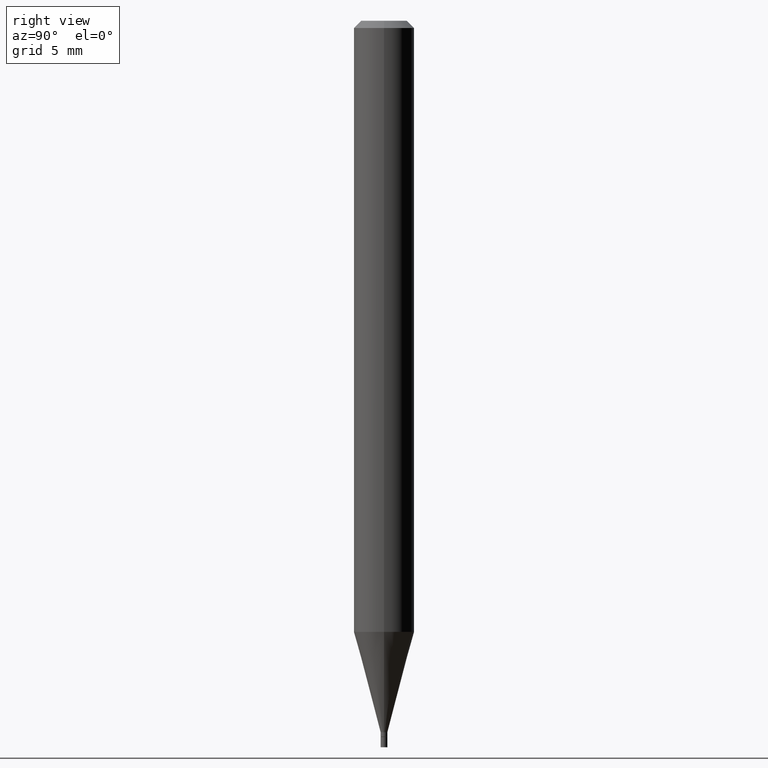
[diagram: clean part render]
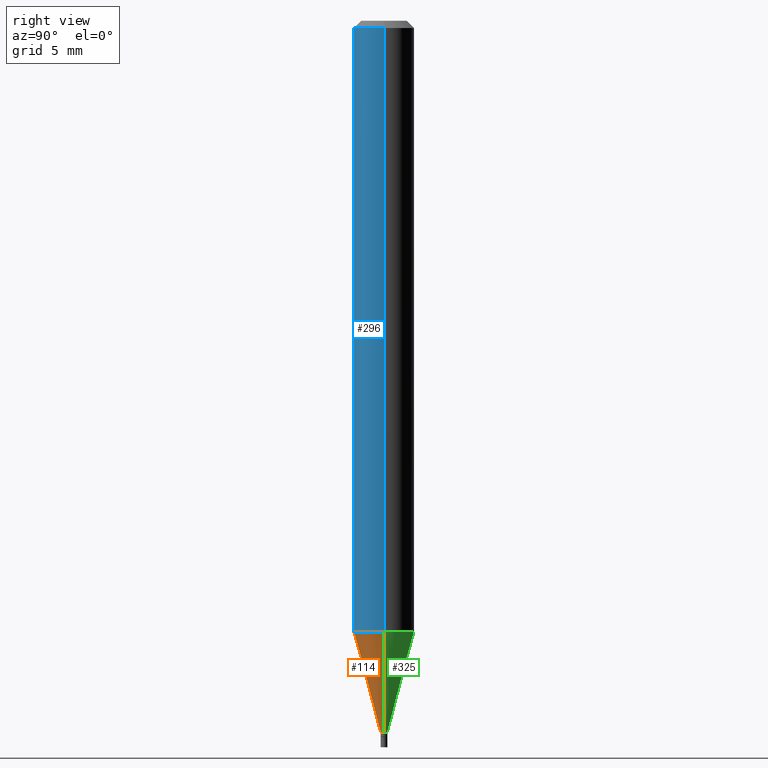
[diagram: same view with three faces highlighted in distinct colors, each labeled with its STEP entity id]
A machine part, right view with three faces highlighted in distinct colors.
Their STEP definitions:

[orange] entity #114 — the highlighted conical surface has half-angle 15 deg.
#7 = AXIS2_PLACEMENT_3D ( 'NONE', #172, #319, #315 ) ;
#16 = CARTESIAN_POINT ( 'NONE',  ( 0.06249999999999999306, -4.842234844977585811E-15, -1.261871180179927610 ) ) ;
#19 = VERTEX_POINT ( 'NONE', #79 ) ;
#21 = CONICAL_SURFACE ( 'NONE', #407, 0.006999999999999920348, 0.2617993877991500740 ) ;
#29 = CARTESIAN_POINT ( 'NONE',  ( -0.006999999999999920348, -4.520479281514752345E-15, -1.469000000000000083 ) ) ;
#37 = DIRECTION ( 'NONE',  ( -2.445468806185136597E-29, 3.491481338843145583E-15, 1.000000000000000000 ) ) ;
#43 = DIRECTION ( 'NONE',  ( -0.2588190451025213501, 5.211531920934551042E-15, 0.9659258262890682012 ) ) ;
#45 = ORIENTED_EDGE ( 'NONE', *, *, #418, .T. ) ;
#58 = VECTOR ( 'NONE', #43, 39.37007874015747433 ) ;
#62 = EDGE_CURVE ( 'NONE', #19, #199, #281, .T. ) ;
#73 = DIRECTION ( 'NONE',  ( 1.000000000000000000, -6.982962677686273021E-15, 0.000000000000000000 ) ) ;
#79 = CARTESIAN_POINT ( 'NONE',  ( -0.06249999999999999306, -3.961710467772130736E-15, -1.261871180179927610 ) ) ;
#88 = CARTESIAN_POINT ( 'NONE',  ( 0.006999999999999920348, -5.177866825504383900E-15, -1.469000000000000083 ) ) ;
#93 = VERTEX_POINT ( 'NONE', #29 ) ;
#114 = ADVANCED_FACE ( 'NONE', ( #448 ), #21, .T. ) ;
#115 = ORIENTED_EDGE ( 'NONE', *, *, #62, .F. ) ;
#127 = CARTESIAN_POINT ( 'NONE',  ( 0.006999999999999920348, -5.177866825504383900E-15, -1.469000000000000083 ) ) ;
#155 = LINE ( 'NONE', #127, #458 ) ;
#172 = CARTESIAN_POINT ( 'NONE',  ( 3.592393676285966338E-29, -5.128986086760581011E-15, -1.469000000000000083 ) ) ;
#175 = ORIENTED_EDGE ( 'NONE', *, *, #185, .F. ) ;
#177 = DIRECTION ( 'NONE',  ( 1.000000000000000000, -6.982962677686262766E-15, 0.000000000000000000 ) ) ;
#185 = EDGE_CURVE ( 'NONE', #93, #19, #276, .T. ) ;
#188 = CARTESIAN_POINT ( 'NONE',  ( 3.592393676285966338E-29, -5.128986086760581011E-15, -1.469000000000000083 ) ) ;
#195 = AXIS2_PLACEMENT_3D ( 'NONE', #351, #279, #177 ) ;
#199 = VERTEX_POINT ( 'NONE', #16 ) ;
#245 = EDGE_CURVE ( 'NONE', #93, #370, #422, .T. ) ;
#247 = ORIENTED_EDGE ( 'NONE', *, *, #245, .T. ) ;
#250 = CARTESIAN_POINT ( 'NONE',  ( -0.006999999999999920348, -5.079248095257373954E-15, -1.469000000000000083 ) ) ;
#276 = LINE ( 'NONE', #250, #58 ) ;
#279 = DIRECTION ( 'NONE',  ( -2.445468806185136597E-29, 3.491481338843145583E-15, 1.000000000000000000 ) ) ;
#281 = CIRCLE ( 'NONE', #195, 0.06250000000000000000 ) ;
#314 = EDGE_LOOP ( 'NONE', ( #175, #247, #45, #115 ) ) ;
#315 = DIRECTION ( 'NONE',  ( 1.000000000000000000, -6.982962677686273021E-15, 0.000000000000000000 ) ) ;
#319 = DIRECTION ( 'NONE',  ( -2.445468806185136597E-29, 3.491481338843145583E-15, 1.000000000000000000 ) ) ;
#351 = CARTESIAN_POINT ( 'NONE',  ( 3.085866608554036727E-29, -4.405799677622194141E-15, -1.261871180179927610 ) ) ;
#370 = VERTEX_POINT ( 'NONE', #88 ) ;
#407 = AXIS2_PLACEMENT_3D ( 'NONE', #188, #37, #73 ) ;
#412 = DIRECTION ( 'NONE',  ( 0.2588190451025213501, 1.565188264969621968E-15, 0.9659258262890682012 ) ) ;
#418 = EDGE_CURVE ( 'NONE', #370, #199, #155, .T. ) ;
#422 = CIRCLE ( 'NONE', #7, 0.006999999999999920348 ) ;
#448 = FACE_OUTER_BOUND ( 'NONE', #314, .T. ) ;
#458 = VECTOR ( 'NONE', #412, 39.37007874015747433 ) ;

[blue] entity #296 — the highlighted cylindrical surface (edge-blend (fillet) strip) has radius 1.5875 mm, axis along (-0, 0, 1).
#13 = ORIENTED_EDGE ( 'NONE', *, *, #135, .F. ) ;
#16 = CARTESIAN_POINT ( 'NONE',  ( 0.06249999999999999306, -4.842234844977585811E-15, -1.261871180179927610 ) ) ;
#18 = ORIENTED_EDGE ( 'NONE', *, *, #369, .T. ) ;
#19 = VERTEX_POINT ( 'NONE', #79 ) ;
#40 = DIRECTION ( 'NONE',  ( -2.445468806185136877E-29, 3.491481338843145188E-15, 1.000000000000000000 ) ) ;
#62 = EDGE_CURVE ( 'NONE', #19, #199, #281, .T. ) ;
#72 = FACE_OUTER_BOUND ( 'NONE', #318, .T. ) ;
#75 = AXIS2_PLACEMENT_3D ( 'NONE', #445, #415, #201 ) ;
#79 = CARTESIAN_POINT ( 'NONE',  ( -0.06249999999999999306, -3.961710467772130736E-15, -1.261871180179927610 ) ) ;
#83 = DIRECTION ( 'NONE',  ( -2.445468806185136877E-29, 3.491481338843145188E-15, 1.000000000000000000 ) ) ;
#111 = DIRECTION ( 'NONE',  ( 1.000000000000000000, -6.982962677686266711E-15, 0.000000000000000000 ) ) ;
#135 = EDGE_CURVE ( 'NONE', #19, #210, #150, .T. ) ;
#145 = EDGE_CURVE ( 'NONE', #210, #426, #389, .T. ) ;
#150 = LINE ( 'NONE', #232, #206 ) ;
#168 = VECTOR ( 'NONE', #83, 39.37007874015748143 ) ;
#174 = CARTESIAN_POINT ( 'NONE',  ( -0.06250000000000000000, -1.784996739002358191E-15, -0.01499999999999999944 ) ) ;
#177 = DIRECTION ( 'NONE',  ( 1.000000000000000000, -6.982962677686262766E-15, 0.000000000000000000 ) ) ;
#195 = AXIS2_PLACEMENT_3D ( 'NONE', #351, #279, #177 ) ;
#199 = VERTEX_POINT ( 'NONE', #16 ) ;
#201 = DIRECTION ( 'NONE',  ( 1.000000000000000000, -6.982962677686266711E-15, 4.876176775795935793E-29 ) ) ;
#206 = VECTOR ( 'NONE', #40, 39.37007874015748143 ) ;
#210 = VERTEX_POINT ( 'NONE', #174 ) ;
#229 = CYLINDRICAL_SURFACE ( 'NONE', #75, 0.06250000000000000000 ) ;
#232 = CARTESIAN_POINT ( 'NONE',  ( -0.06250000000000000000, 4.440892098500626162E-16, -3.074334431409316114E-30 ) ) ;
#237 = ORIENTED_EDGE ( 'NONE', *, *, #62, .T. ) ;
#279 = DIRECTION ( 'NONE',  ( -2.445468806185136597E-29, 3.491481338843145583E-15, 1.000000000000000000 ) ) ;
#281 = CIRCLE ( 'NONE', #195, 0.06250000000000000000 ) ;
#296 = ADVANCED_FACE ( 'NONE', ( #72 ), #229, .T. ) ;
#298 = CARTESIAN_POINT ( 'NONE',  ( 3.668203209277705088E-31, -5.237222008264718399E-17, -0.01499999999999999944 ) ) ;
#299 = CARTESIAN_POINT ( 'NONE',  ( 0.06250000000000000000, -4.364351673553916694E-16, 3.047610484872459871E-30 ) ) ;
#306 = ORIENTED_EDGE ( 'NONE', *, *, #145, .F. ) ;
#318 = EDGE_LOOP ( 'NONE', ( #13, #237, #18, #306 ) ) ;
#333 = LINE ( 'NONE', #299, #168 ) ;
#351 = CARTESIAN_POINT ( 'NONE',  ( 3.085866608554036727E-29, -4.405799677622194141E-15, -1.261871180179927610 ) ) ;
#369 = EDGE_CURVE ( 'NONE', #199, #426, #333, .T. ) ;
#376 = CARTESIAN_POINT ( 'NONE',  ( 0.06250000000000000000, -4.888073874380388472E-16, -0.01499999999999999944 ) ) ;
#389 = CIRCLE ( 'NONE', #463, 0.06250000000000000000 ) ;
#415 = DIRECTION ( 'NONE',  ( -2.445468806185136597E-29, 3.491481338843145583E-15, 1.000000000000000000 ) ) ;
#426 = VERTEX_POINT ( 'NONE', #376 ) ;
#444 = DIRECTION ( 'NONE',  ( -2.445468806185136597E-29, 3.491481338843145583E-15, 1.000000000000000000 ) ) ;
#445 = CARTESIAN_POINT ( 'NONE',  ( 0.000000000000000000, 0.000000000000000000, 0.000000000000000000 ) ) ;
#463 = AXIS2_PLACEMENT_3D ( 'NONE', #298, #444, #111 ) ;

[green] entity #325 — the highlighted conical surface has half-angle 15 deg.
#3 = AXIS2_PLACEMENT_3D ( 'NONE', #134, #100, #136 ) ;
#16 = CARTESIAN_POINT ( 'NONE',  ( 0.06249999999999999306, -4.842234844977585811E-15, -1.261871180179927610 ) ) ;
#19 = VERTEX_POINT ( 'NONE', #79 ) ;
#20 = ORIENTED_EDGE ( 'NONE', *, *, #248, .T. ) ;
#29 = CARTESIAN_POINT ( 'NONE',  ( -0.006999999999999920348, -4.520479281514752345E-15, -1.469000000000000083 ) ) ;
#43 = DIRECTION ( 'NONE',  ( -0.2588190451025213501, 5.211531920934551042E-15, 0.9659258262890682012 ) ) ;
#55 = ORIENTED_EDGE ( 'NONE', *, *, #418, .F. ) ;
#58 = VECTOR ( 'NONE', #43, 39.37007874015747433 ) ;
#70 = DIRECTION ( 'NONE',  ( 1.000000000000000000, -6.982962677686273021E-15, 0.000000000000000000 ) ) ;
#79 = CARTESIAN_POINT ( 'NONE',  ( -0.06249999999999999306, -3.961710467772130736E-15, -1.261871180179927610 ) ) ;
#88 = CARTESIAN_POINT ( 'NONE',  ( 0.006999999999999920348, -5.177866825504383900E-15, -1.469000000000000083 ) ) ;
#93 = VERTEX_POINT ( 'NONE', #29 ) ;
#100 = DIRECTION ( 'NONE',  ( -2.445468806185136597E-29, 3.491481338843145583E-15, 1.000000000000000000 ) ) ;
#102 = AXIS2_PLACEMENT_3D ( 'NONE', #285, #436, #70 ) ;
#121 = ORIENTED_EDGE ( 'NONE', *, *, #185, .T. ) ;
#127 = CARTESIAN_POINT ( 'NONE',  ( 0.006999999999999920348, -5.177866825504383900E-15, -1.469000000000000083 ) ) ;
#134 = CARTESIAN_POINT ( 'NONE',  ( 3.592393676285966338E-29, -5.128986086760581011E-15, -1.469000000000000083 ) ) ;
#136 = DIRECTION ( 'NONE',  ( 1.000000000000000000, -6.982962677686273021E-15, 0.000000000000000000 ) ) ;
#138 = FACE_OUTER_BOUND ( 'NONE', #200, .T. ) ;
#155 = LINE ( 'NONE', #127, #458 ) ;
#179 = CIRCLE ( 'NONE', #446, 0.06250000000000000000 ) ;
#180 = DIRECTION ( 'NONE',  ( 1.000000000000000000, -6.982962677686262766E-15, 0.000000000000000000 ) ) ;
#185 = EDGE_CURVE ( 'NONE', #93, #19, #276, .T. ) ;
#197 = CONICAL_SURFACE ( 'NONE', #102, 0.006999999999999920348, 0.2617993877991500740 ) ;
#199 = VERTEX_POINT ( 'NONE', #16 ) ;
#200 = EDGE_LOOP ( 'NONE', ( #20, #121, #387, #55 ) ) ;
#218 = EDGE_CURVE ( 'NONE', #199, #19, #179, .T. ) ;
#248 = EDGE_CURVE ( 'NONE', #370, #93, #400, .T. ) ;
#250 = CARTESIAN_POINT ( 'NONE',  ( -0.006999999999999920348, -5.079248095257373954E-15, -1.469000000000000083 ) ) ;
#276 = LINE ( 'NONE', #250, #58 ) ;
#285 = CARTESIAN_POINT ( 'NONE',  ( 3.592393676285966338E-29, -5.128986086760581011E-15, -1.469000000000000083 ) ) ;
#325 = ADVANCED_FACE ( 'NONE', ( #138 ), #197, .T. ) ;
#370 = VERTEX_POINT ( 'NONE', #88 ) ;
#386 = CARTESIAN_POINT ( 'NONE',  ( 3.085866608554036727E-29, -4.405799677622194141E-15, -1.261871180179927610 ) ) ;
#387 = ORIENTED_EDGE ( 'NONE', *, *, #218, .F. ) ;
#400 = CIRCLE ( 'NONE', #3, 0.006999999999999920348 ) ;
#412 = DIRECTION ( 'NONE',  ( 0.2588190451025213501, 1.565188264969621968E-15, 0.9659258262890682012 ) ) ;
#418 = EDGE_CURVE ( 'NONE', #370, #199, #155, .T. ) ;
#436 = DIRECTION ( 'NONE',  ( -2.445468806185136597E-29, 3.491481338843145583E-15, 1.000000000000000000 ) ) ;
#446 = AXIS2_PLACEMENT_3D ( 'NONE', #386, #459, #180 ) ;
#458 = VECTOR ( 'NONE', #412, 39.37007874015747433 ) ;
#459 = DIRECTION ( 'NONE',  ( -2.445468806185136597E-29, 3.491481338843145583E-15, 1.000000000000000000 ) ) ;